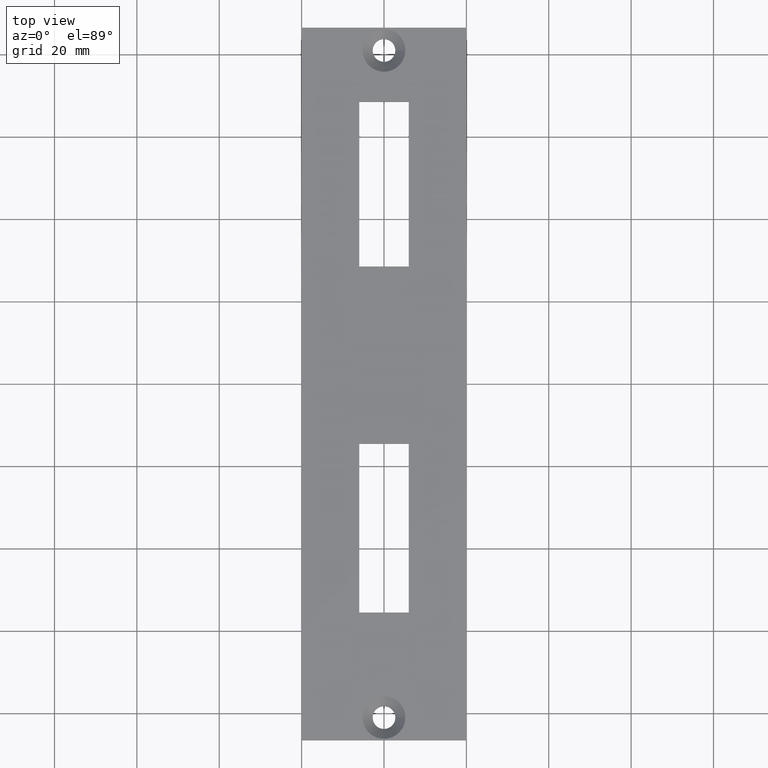
[diagram: clean part render]
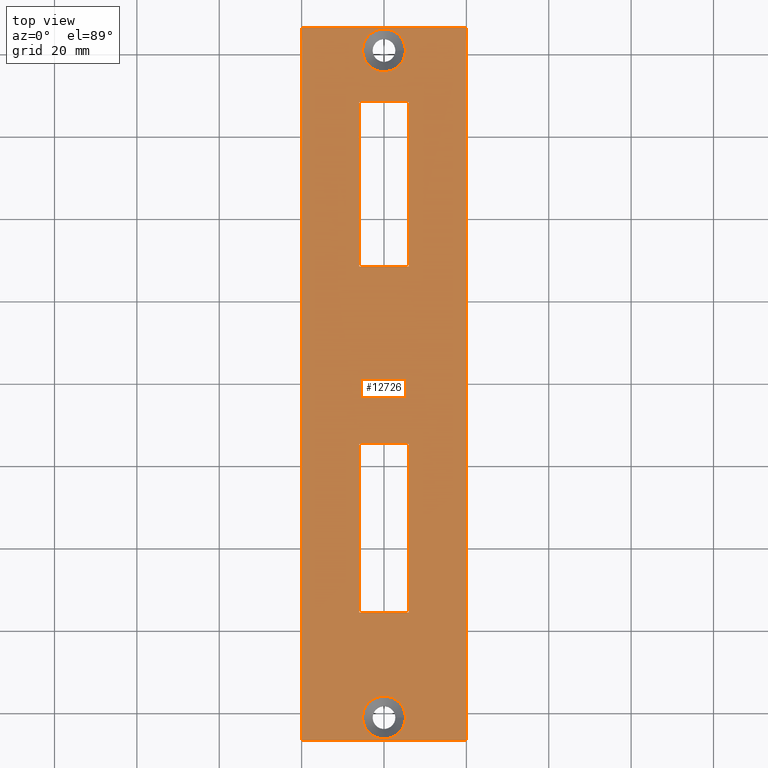
[diagram: same view with one face highlighted and labeled with its STEP entity id]
A machine part, top view. The second image highlights one B-rep face of the part: STEP entity #12726.
In plain terms, the highlighted planar face has unit normal (-0, 0, 1).
Its self-contained STEP definition (entity closure, byte-faithful):
#62 = CARTESIAN_POINT ( 'NONE',  ( 5.999999999999997335, 66.49999999999998579, 3.000000000000000000 ) ) ;
#216 = CARTESIAN_POINT ( 'NONE',  ( -6.000000000000002665, -14.49999999999999289, 3.000000000000000000 ) ) ;
#410 = VERTEX_POINT ( 'NONE', #1261 ) ;
#479 = CARTESIAN_POINT ( 'NONE',  ( -19.99999999999999645, 86.50000000000000000, 3.000000000000000000 ) ) ;
#663 = VECTOR ( 'NONE', #4678, 1000.000000000000000 ) ;
#669 = DIRECTION ( 'NONE',  ( -0.000000000000000000, 1.000000000000000000, -0.000000000000000000 ) ) ;
#673 = DIRECTION ( 'NONE',  ( -0.000000000000000000, -0.000000000000000000, 1.000000000000000000 ) ) ;
#703 = LINE ( 'NONE', #62, #11866 ) ;
#806 = EDGE_LOOP ( 'NONE', ( #8362 ) ) ;
#821 = ORIENTED_EDGE ( 'NONE', *, *, #4494, .F. ) ;
#946 = DIRECTION ( 'NONE',  ( 1.000000000000000000, 0.000000000000000000, 0.000000000000000000 ) ) ;
#1028 = VERTEX_POINT ( 'NONE', #5074 ) ;
#1060 = VERTEX_POINT ( 'NONE', #12197 ) ;
#1201 = DIRECTION ( 'NONE',  ( -1.000000000000000000, -0.000000000000000000, -0.000000000000000000 ) ) ;
#1211 = CARTESIAN_POINT ( 'NONE',  ( -6.000000000000002665, -14.49999999999999289, 3.000000000000000000 ) ) ;
#1261 = CARTESIAN_POINT ( 'NONE',  ( 5.200000000000001066, -81.00000000000001421, 3.000000000000000000 ) ) ;
#1453 = CARTESIAN_POINT ( 'NONE',  ( 6.000000000000002665, -55.49999999999999289, 3.000000000000000000 ) ) ;
#1523 = EDGE_CURVE ( 'NONE', #14780, #8178, #9568, .T. ) ;
#1530 = VECTOR ( 'NONE', #10325, 1000.000000000000000 ) ;
#1753 = VECTOR ( 'NONE', #11544, 1000.000000000000000 ) ;
#1907 = CARTESIAN_POINT ( 'NONE',  ( 5.999999999999997335, 68.49999999999998579, 3.000000000000000000 ) ) ;
#2003 = LINE ( 'NONE', #2410, #11102 ) ;
#2096 = CARTESIAN_POINT ( 'NONE',  ( -5.999999999999997335, -55.49999999999999289, 3.000000000000000000 ) ) ;
#2108 = CARTESIAN_POINT ( 'NONE',  ( -6.000000000000002665, 68.49999999999998579, 3.000000000000000000 ) ) ;
#2288 = VERTEX_POINT ( 'NONE', #13370 ) ;
#2369 = LINE ( 'NONE', #7887, #9452 ) ;
#2410 = CARTESIAN_POINT ( 'NONE',  ( -6.000000000000002665, 66.49999999999998579, 3.000000000000000000 ) ) ;
#2870 = FACE_BOUND ( 'NONE', #806, .T. ) ;
#2922 = EDGE_LOOP ( 'NONE', ( #10567 ) ) ;
#3084 = CARTESIAN_POINT ( 'NONE',  ( 5.999999999999998224, -14.49999999999999289, 3.000000000000000000 ) ) ;
#3093 = CARTESIAN_POINT ( 'NONE',  ( -19.99999999999999645, 86.50000000000000000, 3.000000000000000000 ) ) ;
#3262 = CARTESIAN_POINT ( 'NONE',  ( -5.999999999999998224, 28.49999999999998934, 3.000000000000000000 ) ) ;
#3335 = VERTEX_POINT ( 'NONE', #2108 ) ;
#3479 = VERTEX_POINT ( 'NONE', #10745 ) ;
#3649 = DIRECTION ( 'NONE',  ( -1.141265444721583757E-16, 1.000000000000000000, -0.000000000000000000 ) ) ;
#3699 = DIRECTION ( 'NONE',  ( -0.000000000000000000, -0.000000000000000000, 1.000000000000000000 ) ) ;
#4148 = ORIENTED_EDGE ( 'NONE', *, *, #10888, .F. ) ;
#4446 = ORIENTED_EDGE ( 'NONE', *, *, #7035, .F. ) ;
#4494 = EDGE_CURVE ( 'NONE', #8178, #3479, #703, .T. ) ;
#4505 = ORIENTED_EDGE ( 'NONE', *, *, #14928, .F. ) ;
#4678 = DIRECTION ( 'NONE',  ( 1.000000000000000000, 0.000000000000000000, 0.000000000000000000 ) ) ;
#4710 = LINE ( 'NONE', #5475, #1530 ) ;
#5074 = CARTESIAN_POINT ( 'NONE',  ( -19.99999999999999645, -86.50000000000000000, 3.000000000000000000 ) ) ;
#5261 = DIRECTION ( 'NONE',  ( -1.057758217059028731E-16, 1.000000000000000000, -0.000000000000000000 ) ) ;
#5475 = CARTESIAN_POINT ( 'NONE',  ( -6.000000000000002665, -14.49999999999999289, 3.000000000000000000 ) ) ;
#5498 = CARTESIAN_POINT ( 'NONE',  ( 0.000000000000000000, -81.00000000000001421, 3.000000000000000000 ) ) ;
#5518 = EDGE_LOOP ( 'NONE', ( #4148, #5927, #821, #7313 ) ) ;
#5676 = VECTOR ( 'NONE', #5261, 1000.000000000000000 ) ;
#5927 = ORIENTED_EDGE ( 'NONE', *, *, #10666, .F. ) ;
#6008 = CARTESIAN_POINT ( 'NONE',  ( 0.000000000000000000, 80.99999999999998579, 3.000000000000000000 ) ) ;
#6072 = EDGE_CURVE ( 'NONE', #13270, #14648, #2369, .T. ) ;
#6567 = CARTESIAN_POINT ( 'NONE',  ( 20.00000000000000355, 86.50000000000000000, 3.000000000000000000 ) ) ;
#6620 = DIRECTION ( 'NONE',  ( 0.000000000000000000, -1.000000000000000000, 0.000000000000000000 ) ) ;
#6951 = CARTESIAN_POINT ( 'NONE',  ( -19.99999999999999645, -86.50000000000000000, 3.000000000000000000 ) ) ;
#7035 = EDGE_CURVE ( 'NONE', #1060, #11579, #13298, .T. ) ;
#7111 = DIRECTION ( 'NONE',  ( 1.141265444721583757E-16, -1.000000000000000000, 0.000000000000000000 ) ) ;
#7209 = LINE ( 'NONE', #1907, #14310 ) ;
#7237 = EDGE_CURVE ( 'NONE', #410, #410, #9602, .T. ) ;
#7238 = CARTESIAN_POINT ( 'NONE',  ( -19.99999999999999645, 86.50000000000000000, 3.000000000000000000 ) ) ;
#7313 = ORIENTED_EDGE ( 'NONE', *, *, #1523, .F. ) ;
#7350 = FACE_BOUND ( 'NONE', #5518, .T. ) ;
#7657 = VECTOR ( 'NONE', #11565, 1000.000000000000000 ) ;
#7736 = DIRECTION ( 'NONE',  ( 1.000000000000000000, 0.000000000000000000, 0.000000000000000000 ) ) ;
#7887 = CARTESIAN_POINT ( 'NONE',  ( 20.00000000000000355, 86.50000000000000000, 3.000000000000000000 ) ) ;
#8178 = VERTEX_POINT ( 'NONE', #9705 ) ;
#8284 = EDGE_LOOP ( 'NONE', ( #4446, #11997, #8478, #4505 ) ) ;
#8332 = CARTESIAN_POINT ( 'NONE',  ( 20.00000000000000355, -86.50000000000000000, 3.000000000000000000 ) ) ;
#8349 = CIRCLE ( 'NONE', #9668, 5.200000000000001066 ) ;
#8362 = ORIENTED_EDGE ( 'NONE', *, *, #7237, .F. ) ;
#8478 = ORIENTED_EDGE ( 'NONE', *, *, #11351, .F. ) ;
#8842 = FACE_OUTER_BOUND ( 'NONE', #12465, .T. ) ;
#9452 = VECTOR ( 'NONE', #669, 1000.000000000000000 ) ;
#9568 = LINE ( 'NONE', #3262, #7657 ) ;
#9585 = VERTEX_POINT ( 'NONE', #1453 ) ;
#9602 = CIRCLE ( 'NONE', #10823, 5.200000000000001066 ) ;
#9611 = FACE_BOUND ( 'NONE', #8284, .T. ) ;
#9668 = AXIS2_PLACEMENT_3D ( 'NONE', #6008, #3699, #11935 ) ;
#9705 = CARTESIAN_POINT ( 'NONE',  ( 6.000000000000001776, 28.49999999999998934, 3.000000000000000000 ) ) ;
#9707 = EDGE_CURVE ( 'NONE', #10318, #1028, #11497, .T. ) ;
#9772 = CARTESIAN_POINT ( 'NONE',  ( -5.999999999999998224, 28.49999999999998934, 3.000000000000000000 ) ) ;
#9980 = VECTOR ( 'NONE', #11675, 1000.000000000000000 ) ;
#10318 = VERTEX_POINT ( 'NONE', #479 ) ;
#10325 = DIRECTION ( 'NONE',  ( 1.269309860470834477E-16, -1.000000000000000000, 0.000000000000000000 ) ) ;
#10515 = CARTESIAN_POINT ( 'NONE',  ( 0.000000000000000000, 0.000000000000000000, 3.000000000000000000 ) ) ;
#10567 = ORIENTED_EDGE ( 'NONE', *, *, #10887, .F. ) ;
#10666 = EDGE_CURVE ( 'NONE', #3479, #3335, #7209, .T. ) ;
#10745 = CARTESIAN_POINT ( 'NONE',  ( 5.999999999999997335, 68.49999999999998579, 3.000000000000000000 ) ) ;
#10823 = AXIS2_PLACEMENT_3D ( 'NONE', #5498, #673, #7736 ) ;
#10887 = EDGE_CURVE ( 'NONE', #2288, #2288, #8349, .T. ) ;
#10888 = EDGE_CURVE ( 'NONE', #3335, #14780, #2003, .T. ) ;
#11068 = FACE_BOUND ( 'NONE', #2922, .T. ) ;
#11102 = VECTOR ( 'NONE', #7111, 1000.000000000000000 ) ;
#11351 = EDGE_CURVE ( 'NONE', #12768, #9585, #12964, .T. ) ;
#11478 = DIRECTION ( 'NONE',  ( -1.000000000000000000, 0.000000000000000000, 0.000000000000000000 ) ) ;
#11497 = LINE ( 'NONE', #3093, #14501 ) ;
#11544 = DIRECTION ( 'NONE',  ( -1.000000000000000000, -0.000000000000000000, -0.000000000000000000 ) ) ;
#11565 = DIRECTION ( 'NONE',  ( 1.000000000000000000, 0.000000000000000000, 0.000000000000000000 ) ) ;
#11579 = VERTEX_POINT ( 'NONE', #216 ) ;
#11629 = LINE ( 'NONE', #7238, #14617 ) ;
#11675 = DIRECTION ( 'NONE',  ( 1.000000000000000000, 0.000000000000000000, 0.000000000000000000 ) ) ;
#11866 = VECTOR ( 'NONE', #3649, 1000.000000000000000 ) ;
#11935 = DIRECTION ( 'NONE',  ( 1.000000000000000000, 0.000000000000000000, 0.000000000000000000 ) ) ;
#11977 = EDGE_CURVE ( 'NONE', #1028, #13270, #13684, .T. ) ;
#11997 = ORIENTED_EDGE ( 'NONE', *, *, #12346, .F. ) ;
#12197 = CARTESIAN_POINT ( 'NONE',  ( 5.999999999999998224, -14.49999999999999289, 3.000000000000000000 ) ) ;
#12215 = ORIENTED_EDGE ( 'NONE', *, *, #6072, .T. ) ;
#12346 = EDGE_CURVE ( 'NONE', #9585, #1060, #15187, .T. ) ;
#12465 = EDGE_LOOP ( 'NONE', ( #12215, #15418, #13487, #14211 ) ) ;
#12726 = ADVANCED_FACE ( 'NONE', ( #11068, #2870, #7350, #8842, #9611 ), #13951, .T. ) ;
#12768 = VERTEX_POINT ( 'NONE', #2096 ) ;
#12964 = LINE ( 'NONE', #15280, #9980 ) ;
#13270 = VERTEX_POINT ( 'NONE', #8332 ) ;
#13298 = LINE ( 'NONE', #1211, #1753 ) ;
#13370 = CARTESIAN_POINT ( 'NONE',  ( 5.200000000000001066, 80.99999999999998579, 3.000000000000000000 ) ) ;
#13487 = ORIENTED_EDGE ( 'NONE', *, *, #9707, .T. ) ;
#13684 = LINE ( 'NONE', #6951, #663 ) ;
#13951 = PLANE ( 'NONE',  #14846 ) ;
#14211 = ORIENTED_EDGE ( 'NONE', *, *, #11977, .T. ) ;
#14310 = VECTOR ( 'NONE', #11478, 1000.000000000000000 ) ;
#14377 = EDGE_CURVE ( 'NONE', #14648, #10318, #11629, .T. ) ;
#14501 = VECTOR ( 'NONE', #6620, 1000.000000000000000 ) ;
#14617 = VECTOR ( 'NONE', #1201, 1000.000000000000000 ) ;
#14648 = VERTEX_POINT ( 'NONE', #6567 ) ;
#14780 = VERTEX_POINT ( 'NONE', #9772 ) ;
#14846 = AXIS2_PLACEMENT_3D ( 'NONE', #10515, #15311, #946 ) ;
#14928 = EDGE_CURVE ( 'NONE', #11579, #12768, #4710, .T. ) ;
#15187 = LINE ( 'NONE', #3084, #5676 ) ;
#15280 = CARTESIAN_POINT ( 'NONE',  ( -5.999999999999997335, -55.49999999999999289, 3.000000000000000000 ) ) ;
#15311 = DIRECTION ( 'NONE',  ( -0.000000000000000000, 0.000000000000000000, 1.000000000000000000 ) ) ;
#15418 = ORIENTED_EDGE ( 'NONE', *, *, #14377, .T. ) ;